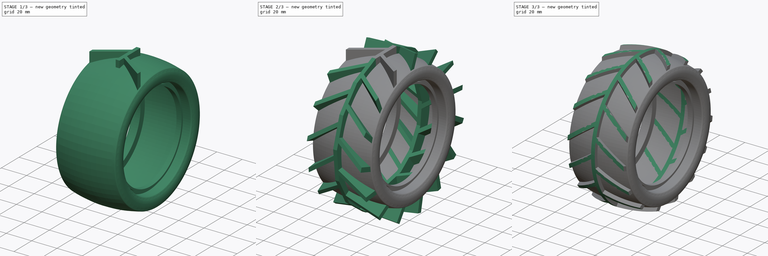
[diagram: build sequence overview — one tinted view per stage of 3, left to right]
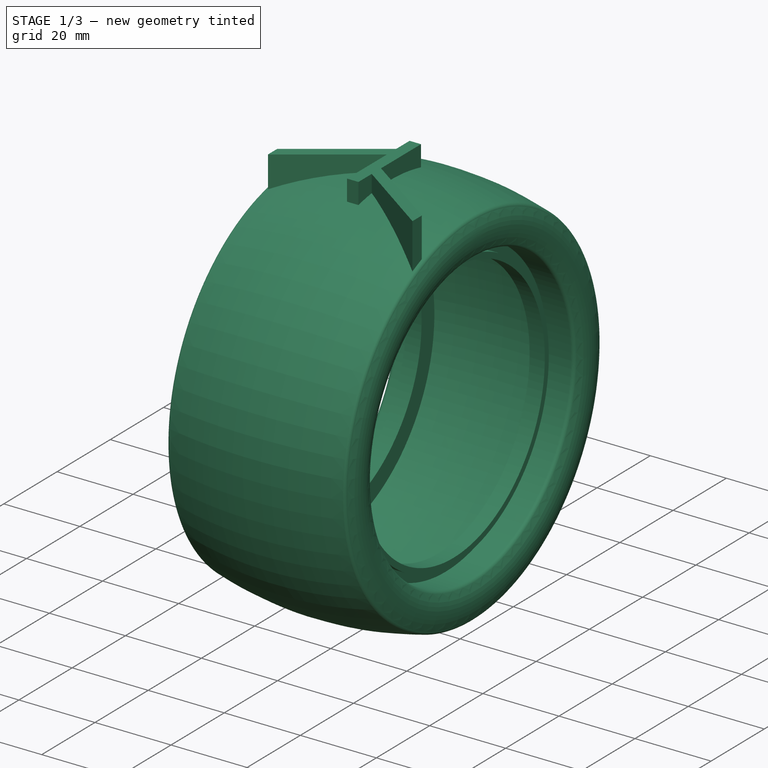
[diagram: stage 1 of 3 — iso view after this stage's code; geometry added in this stage tinted green]
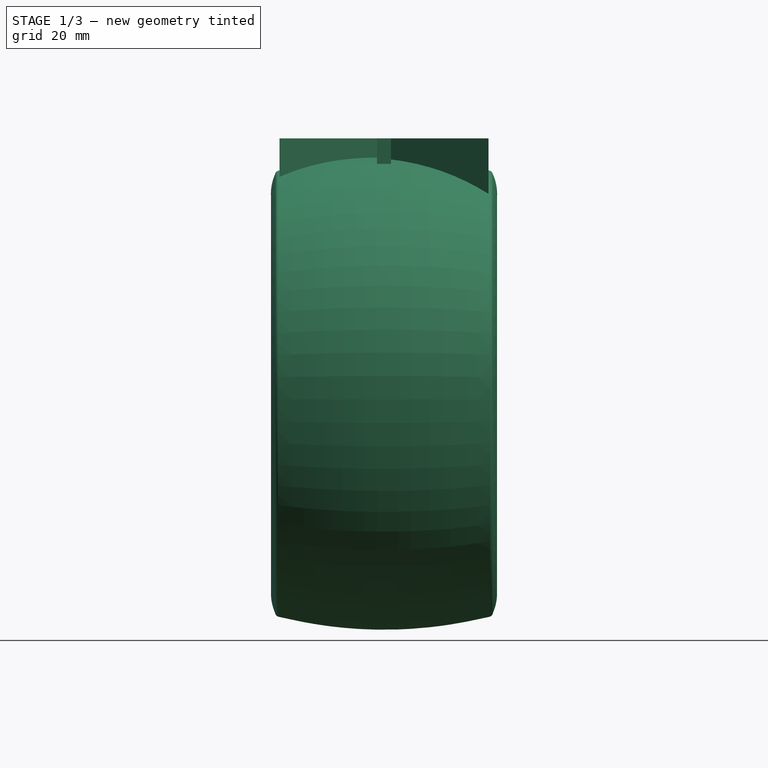
[diagram: stage 1 of 3 — front view after this stage's code; geometry added in this stage tinted green]
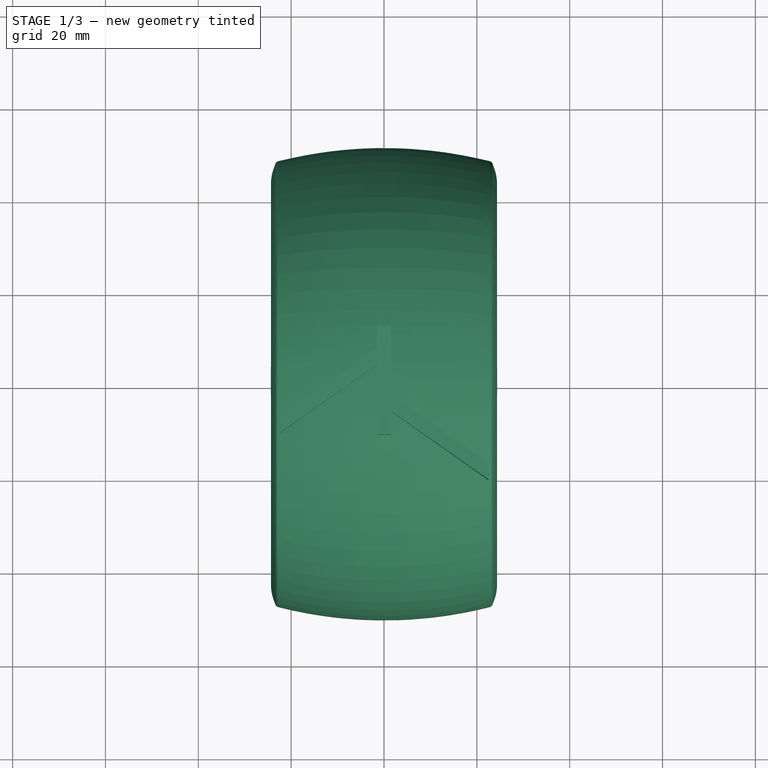
[diagram: stage 1 of 3 — top view after this stage's code; geometry added in this stage tinted green]
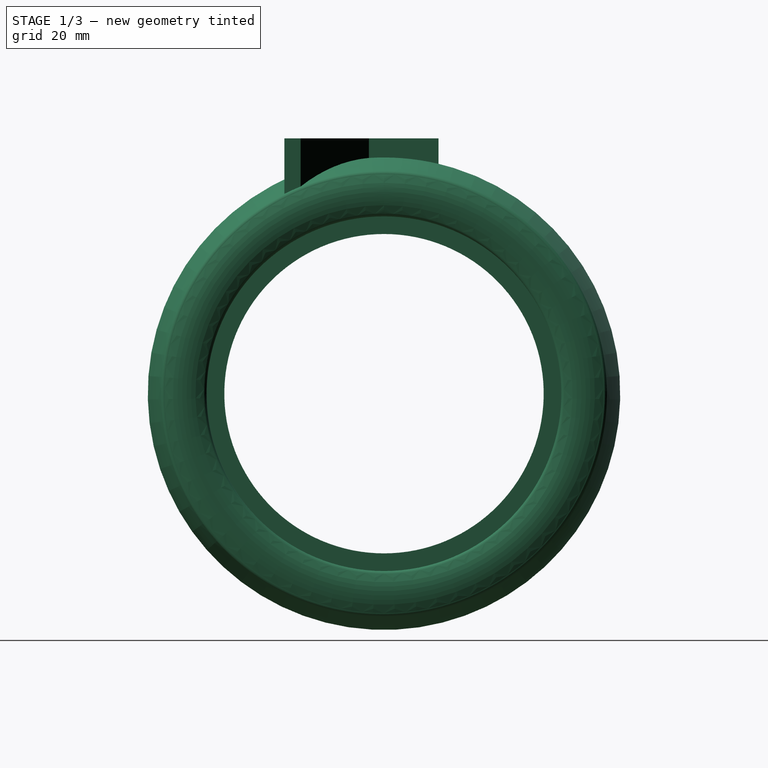
[diagram: stage 1 of 3 — right view after this stage's code; geometry added in this stage tinted green]
FCSTD DOCUMENT  (FreeCAD 0.17R13543 (Git))
Label: ReboundTire
License: CreativeCommons Attribution-NonCommercial-ShareAlike
LicenseURL: http://creativecommons.org/licenses/by-nc-sa/4.0/
objects: Sketcher::SketchObject×4, PartDesign::Groove×2, PartDesign::Revolution×1, PartDesign::Pad×1, PartDesign::PolarPattern×1, PartDesign::Body×1
note: 14 computed .brp shape members not serialized (recipe doc carries the construction recipe); baked Part::Feature solids carry a one-line shape summary decoded from their .brp

FEATURE [Sketcher::SketchObject] Sketch
  MapMode = 5
  Placement = pos=(0,0,0) rot=(1,0,0;1.5708rad)
  Support = -> [XZ_Plane]
  sketch-geometry (31):
    g0: LineSegment StartX=-14.2 StartY=34.4 StartZ=0 EndX=-18.2 EndY=34.4 EndZ=0
    g1: LineSegment StartX=-18.2 StartY=34.4 StartZ=0 EndX=-18.2 EndY=35.9 EndZ=0
    g2: LineSegment StartX=-18.2 StartY=35.9 StartZ=0 EndX=-16.2 EndY=35.9 EndZ=0
    g3: LineSegment StartX=-16.2 StartY=35.9 StartZ=0 EndX=-16.2 EndY=38.2 EndZ=0
    g4: LineSegment StartX=-22.5 StartY=38.2 StartZ=0 EndX=-16.2 EndY=38.2 EndZ=0
    g5: LineSegment StartX=14.2 StartY=39.2 StartZ=0 EndX=14.2 EndY=34.4 EndZ=0
    g6: LineSegment StartX=14.2 StartY=34.4 StartZ=0 EndX=18.2 EndY=34.4 EndZ=0
    g7: LineSegment StartX=18.2 StartY=34.4 StartZ=0 EndX=18.2 EndY=35.9 EndZ=0
    g8: LineSegment StartX=18.2 StartY=35.9 StartZ=0 EndX=16.2 EndY=35.9 EndZ=0
    g9: LineSegment StartX=16.2 StartY=35.9 StartZ=0 EndX=16.2 EndY=38.2 EndZ=0
    g10: LineSegment StartX=16.2 StartY=38.2 StartZ=0 EndX=22.5 EndY=38.2 EndZ=0
    g11: ArcOfCircle CenterX=22.5 CenterY=39.2 CenterZ=0 NormalX=0 NormalY=0 NormalZ=1 AngleXU=0 Radius=1 StartAngle=4.71239 EndAngle=5.84684
    g12: ArcOfCircle CenterX=-14.1731 CenterY=43.0829 CenterZ=0 NormalX=0 NormalY=0 NormalZ=1 AngleXU=0 Radius=10.1878 StartAngle=2.71726 EndAngle=3.57792
    g13: ArcOfCircle CenterX=0 CenterY=-41.1755 CenterZ=0 NormalX=0 NormalY=0 NormalZ=1 AngleXU=0 Radius=92.0755 StartAngle=1.32204 EndAngle=1.81955
    g14: ArcOfCircle CenterX=-22.5 CenterY=39.2 CenterZ=0 NormalX=0 NormalY=0 NormalZ=1 AngleXU=0 Radius=1 StartAngle=3.57792 EndAngle=4.71239
    g15: LineSegment [constr] StartX=-22.5 StartY=39.2 StartZ=0 EndX=-22.5 EndY=38.2 EndZ=0
    g16: LineSegment [constr] StartX=-23.4063 StartY=38.7774 StartZ=0 EndX=-14.1731 EndY=43.0829 EndZ=0
    g17: LineSegment StartX=-14.2 StartY=34.4 StartZ=0 EndX=-14.2 EndY=39.2 EndZ=0
    g18: ArcOfCircle CenterX=-22.5 CenterY=47.1086 CenterZ=0 NormalX=0 NormalY=0 NormalZ=1 AngleXU=0 Radius=0.972061 StartAngle=1.74533 EndAngle=2.96706
    g19: GeomPoint X=0 Y=50.9 Z=0
    g20: LineSegment [constr] StartX=-22.5 StartY=47.1086 StartZ=0 EndX=-23.4573 EndY=47.2774 EndZ=0
    g21: LineSegment [constr] StartX=-22.5 StartY=47.1086 StartZ=0 EndX=-22.6688 EndY=48.0659 EndZ=0
    g22: LineSegment [constr] StartX=-22.5 StartY=47.1086 StartZ=0 EndX=-22.5 EndY=48.1086 EndZ=0
    g23: ArcOfCircle CenterX=22.5 CenterY=47.1086 CenterZ=0 NormalX=0 NormalY=0 NormalZ=1 AngleXU=0 Radius=0.972061 StartAngle=0.174533 EndAngle=1.39626
    g24: ArcOfCircle CenterX=14.1731 CenterY=43.0829 CenterZ=0 NormalX=0 NormalY=0 NormalZ=1 AngleXU=0 Radius=10.1878 StartAngle=5.84685 EndAngle=6.70752
    g25: ArcOfCircle CenterX=0 CenterY=-55.8055 CenterZ=0 NormalX=0 NormalY=0 NormalZ=1 AngleXU=0 Radius=105.206 StartAngle=1.35526 EndAngle=1.78633
    g26: GeomPoint X=0 Y=49.4 Z=0
    g27: ArcOfCircle CenterX=12.6731 CenterY=43.0829 CenterZ=0 NormalX=0 NormalY=0 NormalZ=1 AngleXU=0 Radius=10.5663 StartAngle=5.90688 EndAngle=6.65949
    g28: LineSegment StartX=22.5 StartY=39.2 StartZ=0 EndX=14.2 EndY=39.2 EndZ=0
    g29: LineSegment StartX=-14.2 StartY=39.2 StartZ=0 EndX=-22.5 EndY=39.2 EndZ=0
    g30: ArcOfCircle CenterX=-14.1731 CenterY=43.0829 CenterZ=0 NormalX=0 NormalY=0 NormalZ=1 AngleXU=0 Radius=9.18777 StartAngle=2.70526 EndAngle=3.57792
  constraints (89):
    c: Horizontal(g0)
    c: Coincident(g1,g0)
    c: Vertical(g1)
    c: Coincident(g2,g1)
    c: Horizontal(g2)
    c: Coincident(g3,g2)
    c: Horizontal(g4)
    c: DistanceY(g1,g1) = 1.5
    c: DistanceX(g2,g2) = 2
    c: DistanceY(g3,g3) = 2.3
    c: DistanceX(g2,g0) = 2
    c: DistanceX(g4,g4) = 6.3
    c: DistanceY(g-1,g0) = 34.4
    c: DistanceX(g0,g-1) = 14.2
    c: Symmetric(g5,g17,g-2)
    c: Vertical(g5)
    c: Coincident(g6,g5)
    c: Horizontal(g6)
    c: Coincident(g7,g6)
    c: Coincident(g8,g7)
    c: Horizontal(g8)
    c: Coincident(g9,g8)
    c: Vertical(g9)
    c: Coincident(g10,g9)
    c: Horizontal(g10)
    c: Vertical(g7)
    c: Symmetric(g6,g0,g-2)
    c: Symmetric(g8,g2,g-2)
    c: Symmetric(g9,g3,g-2)
    c: Coincident(g11,g10)
    c: Vertical(g11,g10)
    c: Symmetric(g10,g4,g-2)
    c: DistanceY(g12,g12) = 8.5
    c: PointOnObject(g13,g-2)
    c: Coincident(g14,g12)
    c: Coincident(g14,g4)
    c: Coincident(g15,g14)
    c: Coincident(g15,g4)
    c: Vertical(g15)
    c: DistanceY(g15,g15) = 1
    c: Coincident(g16,g12)
    c: PointOnObject(g14,g16)
    c: Angle(g15,g16,g14) = 2.00713
    c: Coincident(g17,g0)
    c: Vertical(g17)
    c: Coincident(g18,g12)
    c: PointOnObject(g19,g-2)
    c: PointOnObject(g19,g13)
    c: DistanceY(g4,g19) = 12.7
    c: Coincident(g18,g13)
    c: Coincident(g20,g18)
    c: Coincident(g20,g12)
    c: Coincident(g21,g18)
    c: Coincident(g21,g13)
    c: Coincident(g22,g18)
    c: PointOnObject(g22,g13)
    c: Vertical(g22)
    c: Angle(g22,g21) = 0.174533
    c: Angle(g21,g20) = 1.22173
    c: Vertical(g18,g14)
    c: DistanceY(g22,g22) = 1
    c: Coincident(g12,g16)
    c: Symmetric(g13,g13,g-2)
    c: Coincident(g3,g4)
    c: Coincident(g23,g13)
    c: Symmetric(g23,g18,g-2)
    c: Symmetric(g13,g13,g-2)
    c: Symmetric(g12,g23,g-2)
    c: Coincident(g24,g23)
    c: Coincident(g24,g11)
    c: Symmetric(g24,g12,g-2)
    c: PointOnObject(g25,g-2)
    c: PointOnObject(g26,g-2)
    c: PointOnObject(g26,g25)
    c: DistanceY(g26,g19) = 1.5
    c: Symmetric(g25,g25,g-2)
    c: Coincident(g27,g25)
    c: Coincident(g27,g11)
    c: Horizontal(g24,g27)
    c: DistanceX(g27,g24) = 1.5
    c: Coincident(g28,g11)
    c: Coincident(g28,g5)
    c: Horizontal(g28)
    c: Coincident(g29,g17)
    c: Coincident(g29,g14)
    c: Horizontal(g29)
    c: Coincident(g30,g14)
    c: Coincident(g30,g25)
    c: Symmetric(g30,g24,g-2)
FEATURE [PartDesign::Revolution] Revolution
  Angle = 360
  Axis = (1,0,0)
  Base = (0,0,0)
  Placement = pos=(0,0,0) rot=(1,0,0;1.5708rad)
  Profile = -> Sketch
  ReferenceAxis = -> X_Axis
FEATURE [Sketcher::SketchObject] Sketch001
  ExternalGeometry = -> [Sketch]
  MapMode = 5
  Placement = pos=(0,0,40) rot=(0,0,1;0rad)
  sketch-geometry (14):
    g0: LineSegment [constr] StartX=-22.5 StartY=11.75 StartZ=0 EndX=-22.5 EndY=-21.4544 EndZ=0
    g1: LineSegment StartX=-1.5 StartY=6.75 StartZ=0 EndX=-22.5 EndY=-7.95436 EndZ=0
    g2: LineSegment StartX=-22.5 StartY=-11.4544 StartZ=0 EndX=-1.5 EndY=3.25 EndZ=0
    g3: LineSegment StartX=-1.5 StartY=-11.75 StartZ=0 EndX=-1.5 EndY=3.25 EndZ=0
    g4: LineSegment StartX=-22.5 StartY=-11.4544 StartZ=0 EndX=-22.5 EndY=-7.95436 EndZ=0
    g5: LineSegment [constr] StartX=22.5 StartY=11.75 StartZ=0 EndX=22.5 EndY=-21.4544 EndZ=0
    g6: LineSegment StartX=1.5 StartY=-6.75 StartZ=0 EndX=22.5 EndY=-21.4544 EndZ=0
    g7: LineSegment StartX=22.5 StartY=-17.9544 StartZ=0 EndX=1.5 EndY=-3.25 EndZ=0
    g8: LineSegment StartX=1.5 StartY=11.75 StartZ=0 EndX=1.5 EndY=-3.25 EndZ=0
    g9: LineSegment StartX=22.5 StartY=-17.9544 StartZ=0 EndX=22.5 EndY=-21.4544 EndZ=0
    g10: LineSegment StartX=-1.5 StartY=6.75 StartZ=0 EndX=-1.5 EndY=11.75 EndZ=0
    g11: LineSegment StartX=-1.5 StartY=11.75 StartZ=0 EndX=1.5 EndY=11.75 EndZ=0
    g12: LineSegment StartX=1.5 StartY=-6.75 StartZ=0 EndX=1.5 EndY=-11.75 EndZ=0
    g13: LineSegment StartX=1.5 StartY=-11.75 StartZ=0 EndX=-1.5 EndY=-11.75 EndZ=0
  constraints (41):
    c: Symmetric(g1,g6,g-1)
    c: Vertical(g0)
    c: PointOnObject(g1,g0)
    c: PointOnObject(g2,g0)
    c: Coincident(g3,g2)
    c: Coincident(g4,g2)
    c: Symmetric(g5,g0,g-2)
    c: Coincident(g1,g4)
    c: Vertical(g2,g1)
    c: Vertical(g3)
    c: Symmetric(g5,g0,g-2)
    c: PointOnObject(g6,g5)
    c: PointOnObject(g7,g5)
    c: Coincident(g8,g7)
    c: Vertical(g8)
    c: Coincident(g9,g7)
    c: Coincident(g9,g6)
    c: Vertical(g6,g7)
    c: Coincident(g10,g1)
    c: Vertical(g10)
    c: Coincident(g11,g10)
    c: Horizontal(g11)
    c: Coincident(g8,g11)
    c: Coincident(g12,g6)
    c: Vertical(g12)
    c: Coincident(g13,g12)
    c: Horizontal(g13)
    c: Coincident(g3,g13)
    c: Parallel(g2,g1)
    c: Parallel(g6,g7)
    c: DistanceY(g2,g1) = 3.5
    c: DistanceY(g6,g7) = 3.5
    c: DistanceX(g13,g13) = 3
    c: Angle(g2,g3) = 0.959931
    c: DistanceY(g3,g2) = 15
    c: DistanceY(g7,g8) = 15
    c: DistanceY(g1,g10) = 5
    c: Angle(g12,g6) = 0.959931
    c: Coincident(g5,g6)
    c: DistanceX(g12,g5) = 21
    c: Horizontal(g5,g8)
FEATURE [PartDesign::Pad] Pad
  BaseFeature = -> Revolution
  Length = 15
  Length2 = 100
  Offset = 50
  Placement = pos=(0,0,0) rot=(1,0,0;1.5708rad)
  Profile = -> Sketch001
  Type = 0
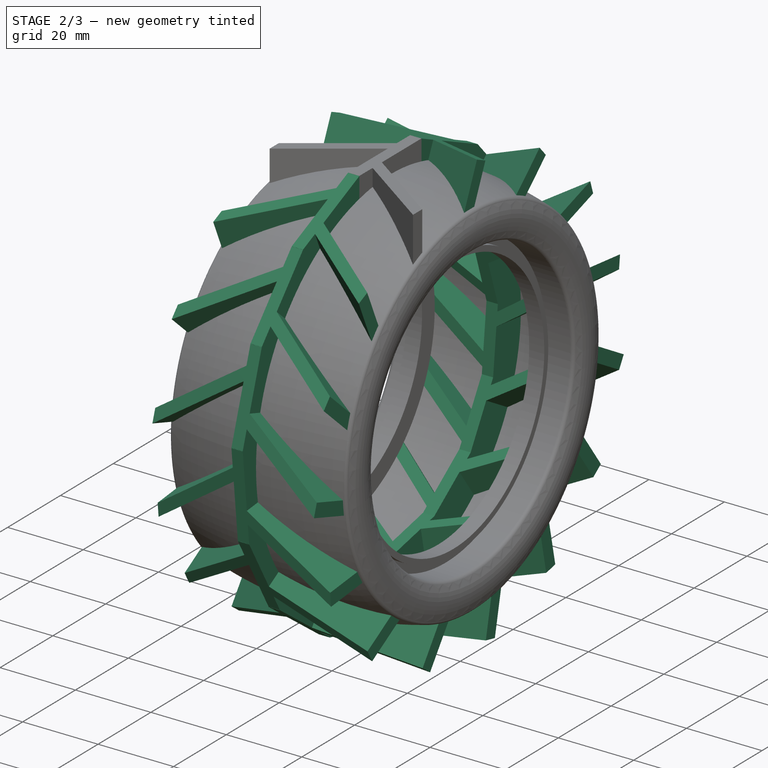
[diagram: stage 2 of 3 — iso view after this stage's code; geometry added in this stage tinted green]
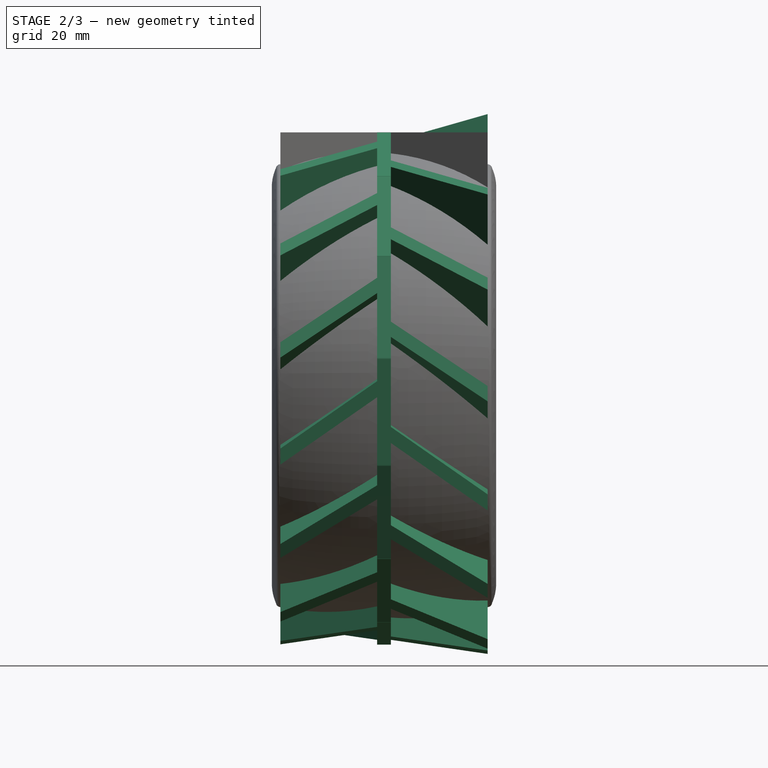
[diagram: stage 2 of 3 — front view after this stage's code; geometry added in this stage tinted green]
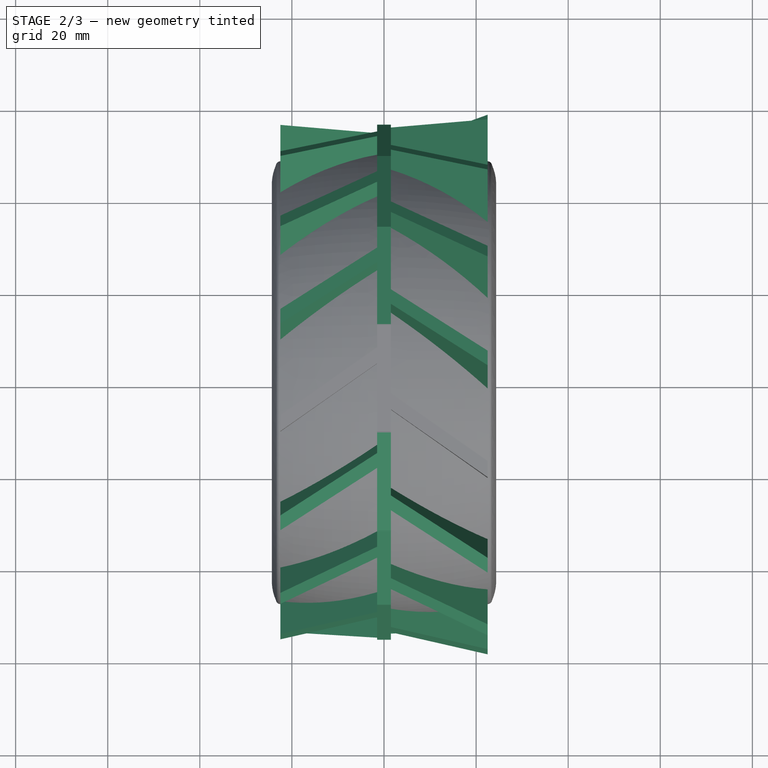
[diagram: stage 2 of 3 — top view after this stage's code; geometry added in this stage tinted green]
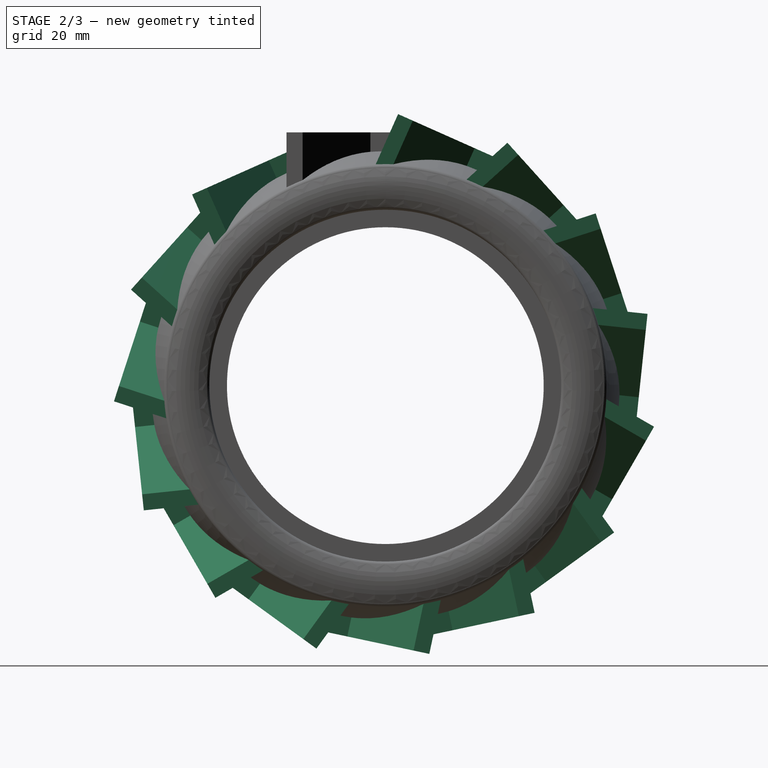
[diagram: stage 2 of 3 — right view after this stage's code; geometry added in this stage tinted green]
FEATURE [Sketcher::SketchObject] Sketch003
  ExternalGeometry = -> [Sketch]
  MapMode = 5
  Placement = pos=(0,0,0) rot=(1,0,0;1.5708rad)
  Support = -> [XZ_Plane]
  sketch-geometry (4):
    g0: LineSegment StartX=-22.4 StartY=39.2 StartZ=0 EndX=22.4 EndY=39.2 EndZ=0
    g1: ArcOfCircle CenterX=-14.0735 CenterY=43.0827 CenterZ=0 NormalX=0 NormalY=0 NormalZ=1 AngleXU=0 Radius=9.18727 StartAngle=2.70526 EndAngle=3.57792
    g2: ArcOfCircle CenterX=12.5735 CenterY=43.0827 CenterZ=0 NormalX=0 NormalY=0 NormalZ=1 AngleXU=0 Radius=10.5658 StartAngle=5.90689 EndAngle=6.65948
    g3: ArcOfCircle CenterX=0 CenterY=-54.8658 CenterZ=0 NormalX=0 NormalY=0 NormalZ=1 AngleXU=0 Radius=104.266 StartAngle=1.35427 EndAngle=1.78732
  constraints (11):
    c: Coincident(g0,g-3)
    c: Coincident(g0,g-5)
    c: Coincident(g1,g-3)
    c: Coincident(g1,g0)
    c: Coincident(g1,g-4)
    c: Coincident(g2,g-5)
    c: Coincident(g2,g0)
    c: Coincident(g2,g-5)
    c: Coincident(g3,g-4)
    c: Coincident(g3,g1)
    c: Coincident(g3,g2)
FEATURE [Sketcher::SketchObject] Sketch002
  ExternalGeometry = -> [Sketch]
  MapMode = 5
  Placement = pos=(0,0,0) rot=(1,0,0;1.5708rad)
  Support = -> [XZ_Plane]
  sketch-geometry (8):
    g0: ArcOfCircle CenterX=0 CenterY=-38.1755 CenterZ=0 NormalX=0 NormalY=0 NormalZ=1 AngleXU=0 Radius=92.0755 StartAngle=1.28827 EndAngle=1.85332
    g1: GeomPoint X=0 Y=50.9 Z=0
    g2: GeomPoint X=0 Y=53.9 Z=0
    g3: GeomPoint X=22.6688 Y=51.0659 Z=0
    g4: LineSegment StartX=-25.6688 StartY=50.2497 StartZ=0 EndX=-25.6688 EndY=58.9 EndZ=0
    g5: LineSegment StartX=-25.6688 StartY=58.9 StartZ=0 EndX=25.6688 EndY=58.9 EndZ=0
    g6: LineSegment StartX=25.6688 StartY=58.9 StartZ=0 EndX=25.6688 EndY=50.2497 EndZ=0
    g7: GeomPoint X=0 Y=58.9 Z=0
  constraints (20):
    c: PointOnObject(g1,g-3)
    c: PointOnObject(g2,g0)
    c: PointOnObject(g2,g-2)
    c: PointOnObject(g1,g-2)
    c: DistanceY(g1,g2) = 3
    c: Symmetric(g0,g0,g-2)
    c: PointOnObject(g3,g0)
    c: Vertical(g-3,g3)
    c: DistanceY(g-3,g3) = 3
    c: Coincident(g4,g0)
    c: Vertical(g4)
    c: Coincident(g5,g4)
    c: Horizontal(g5)
    c: Coincident(g6,g5)
    c: Coincident(g6,g0)
    c: Vertical(g6)
    c: PointOnObject(g7,g5)
    c: PointOnObject(g7,g-2)
    c: DistanceY(g2,g7) = 5
    c: DistanceX(g3,g0) = 3
FEATURE [PartDesign::PolarPattern] PolarPattern
  Angle = 360
  Axis = -> X_Axis
  BaseFeature = -> Pad
  Occurrences = 15
  Originals = -> [Pad]
  Placement = pos=(0,0,0) rot=(1,0,0;1.5708rad)
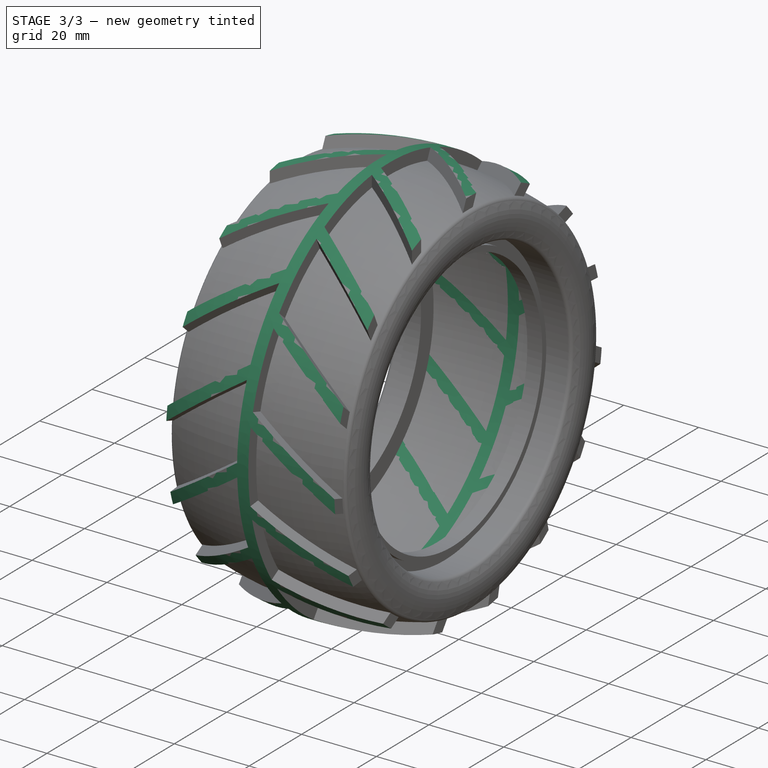
[diagram: stage 3 of 3 — iso view after this stage's code; geometry added in this stage tinted green]
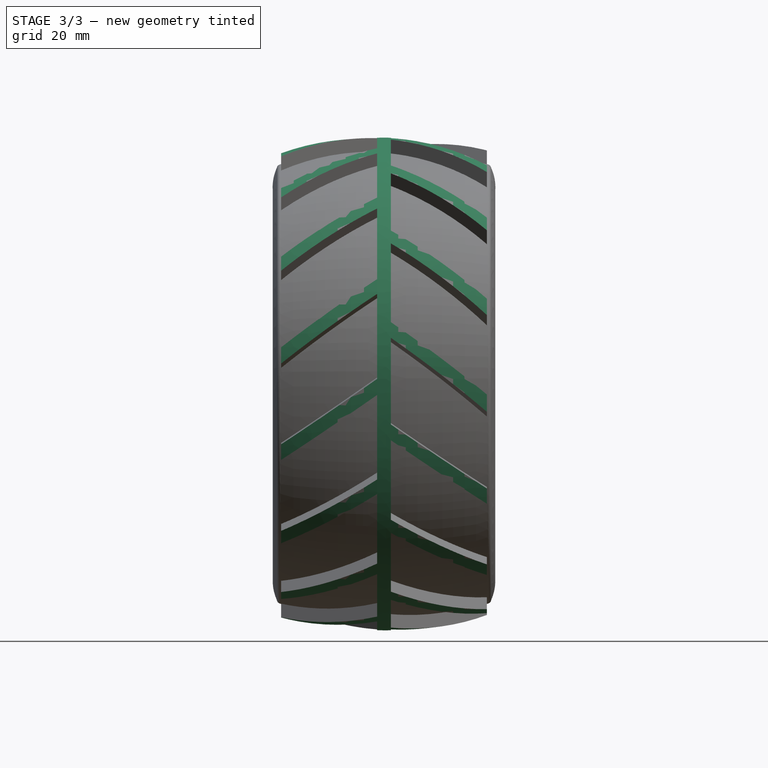
[diagram: stage 3 of 3 — front view after this stage's code; geometry added in this stage tinted green]
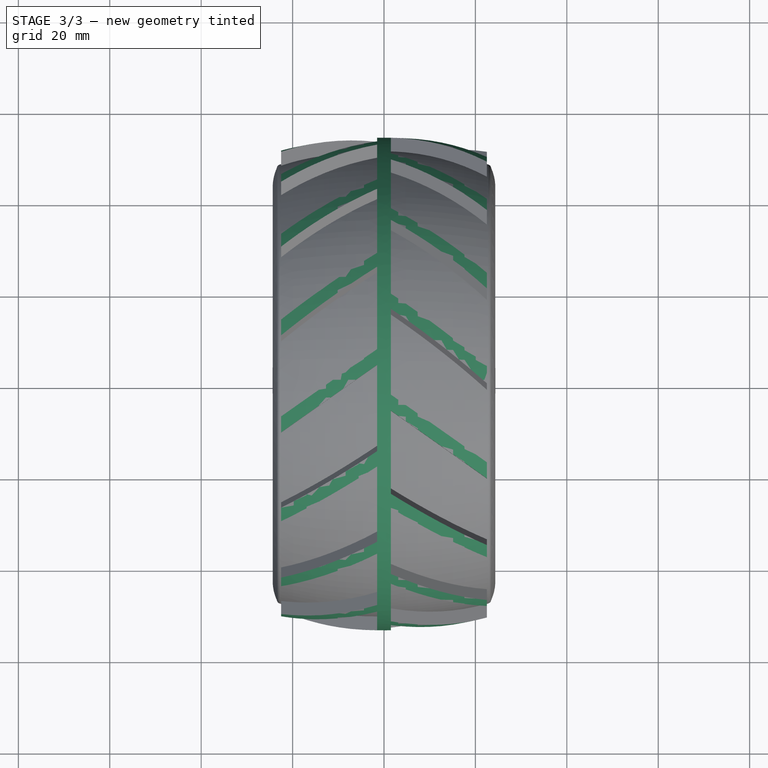
[diagram: stage 3 of 3 — top view after this stage's code; geometry added in this stage tinted green]
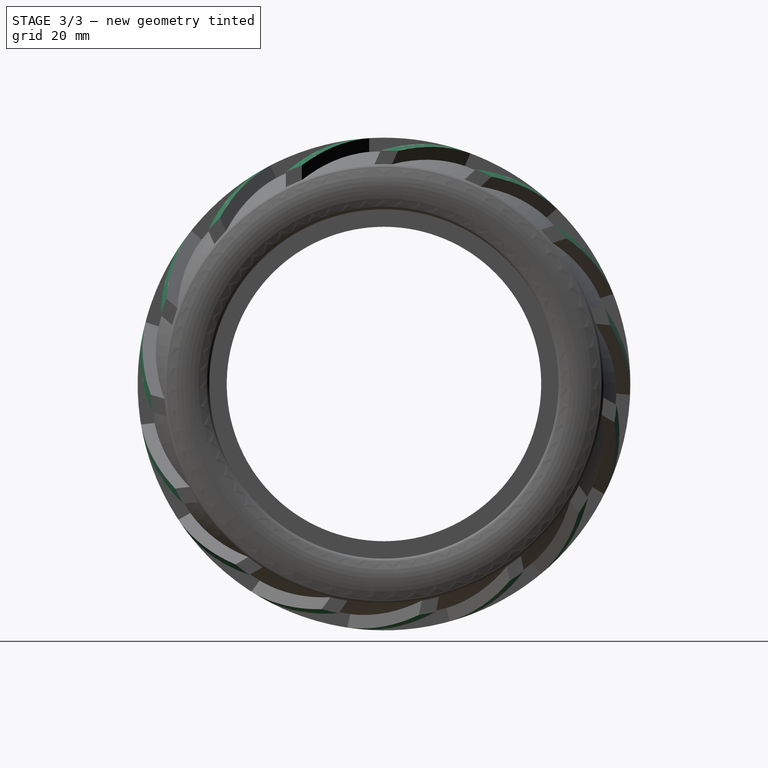
[diagram: stage 3 of 3 — right view after this stage's code; geometry added in this stage tinted green]
FEATURE [PartDesign::Groove] Groove
  Angle = 360
  Axis = (1,0,0)
  Base = (0,0,0)
  BaseFeature = -> PolarPattern
  Placement = pos=(0,0,0) rot=(1,0,0;1.5708rad)
  Profile = -> Sketch002
  ReferenceAxis = -> X_Axis
FEATURE [PartDesign::Groove] Groove001
  Angle = 360
  Axis = (1,0,0)
  Base = (0,0,0)
  BaseFeature = -> Groove
  Placement = pos=(0,0,0) rot=(1,0,0;1.5708rad)
  Profile = -> Sketch003
  ReferenceAxis = -> X_Axis
  Reversed = true
FEATURE [PartDesign::Body] Body  label="Tire"
  Group = -> [Sketch,Revolution,Sketch001,Pad,Sketch002,PolarPattern,Groove,Sketch003,Groove001]
  Origin = -> Origin
  Tip = -> Groove001
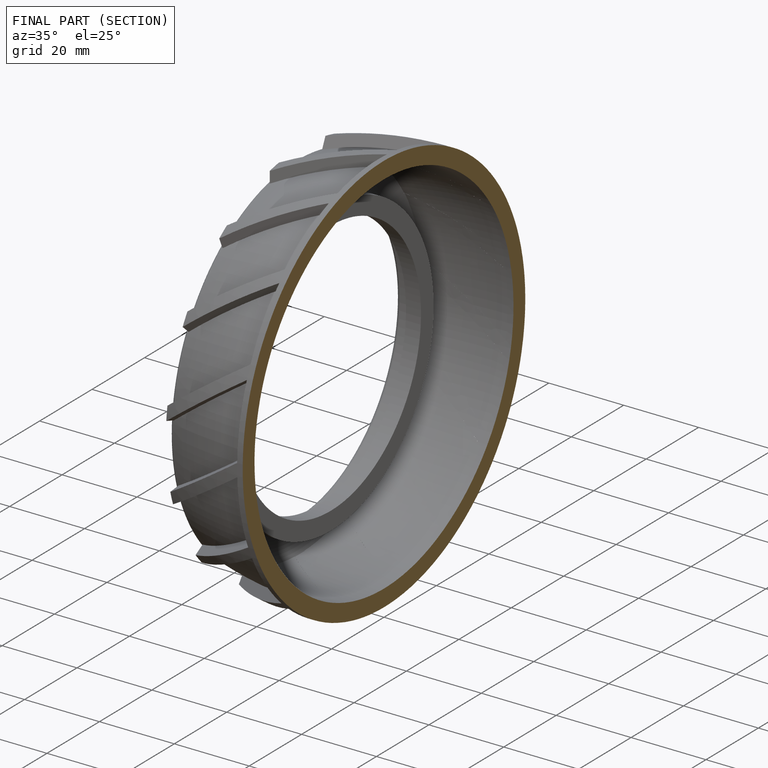
[diagram: finished part — half-section view (interior)]
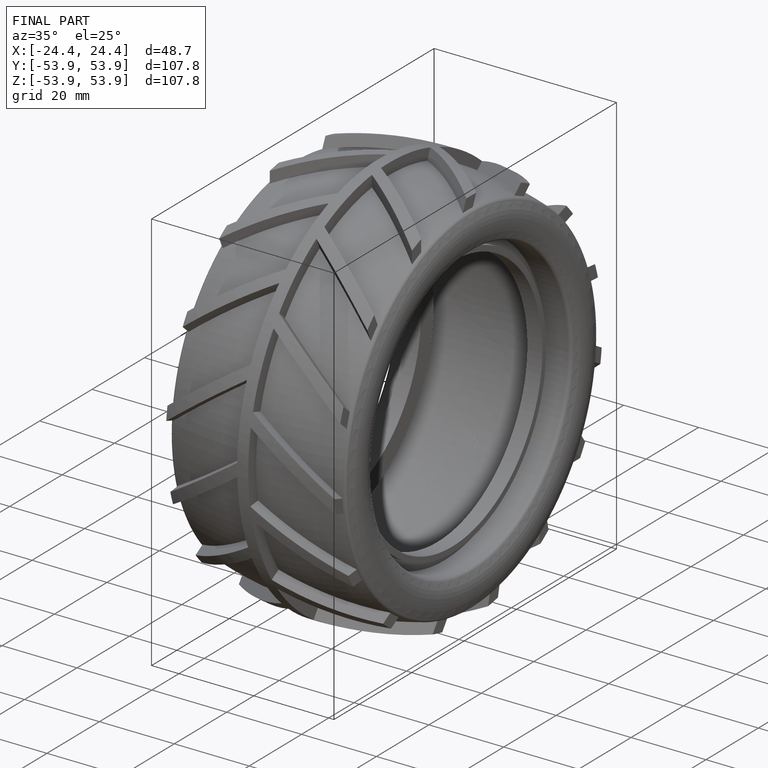
[diagram: finished part — iso view with bounding-box wireframe]
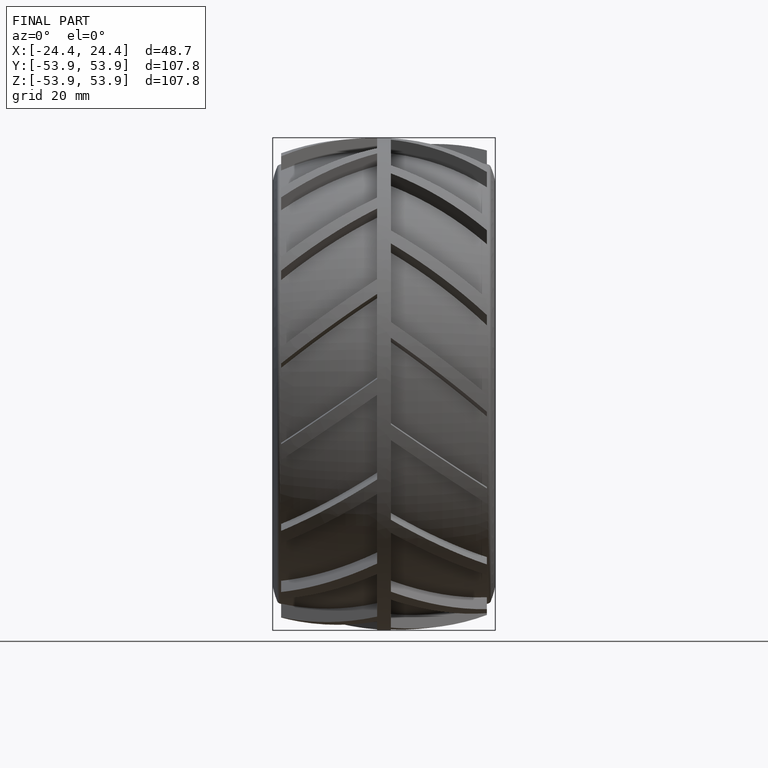
[diagram: finished part — front view with bounding-box wireframe]
